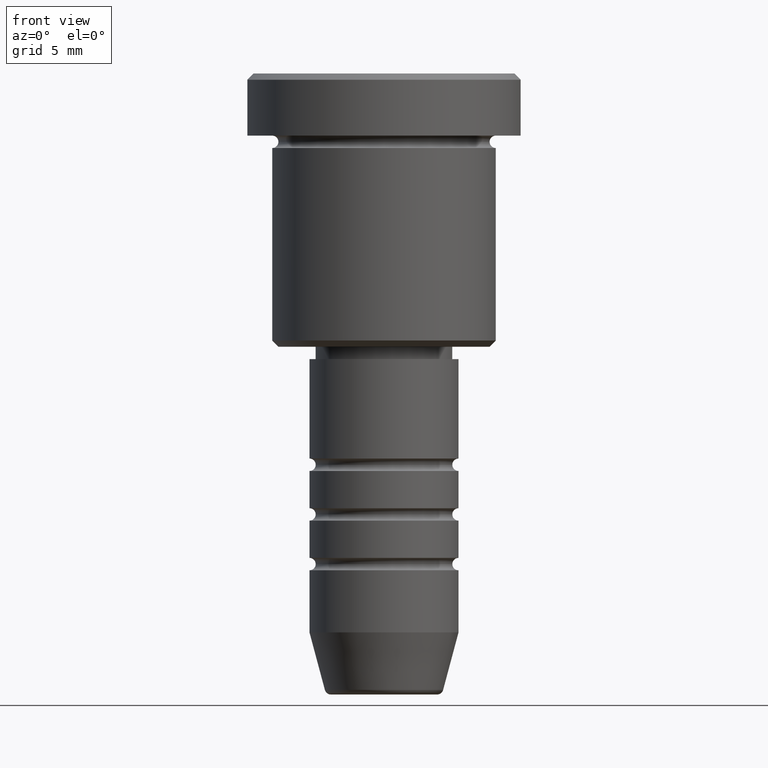
[diagram: clean part render]
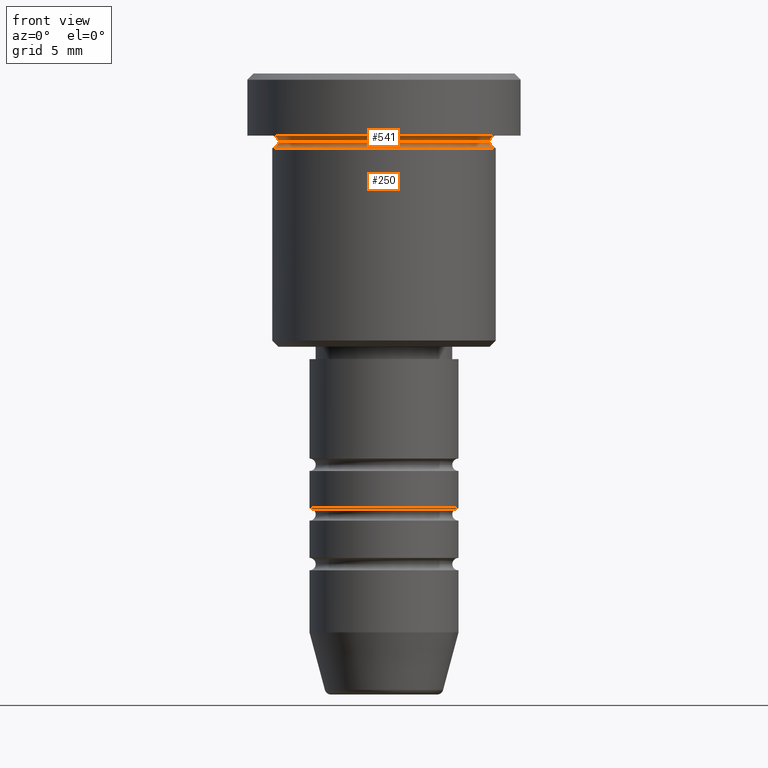
[diagram: same view with one multi-face feature highlighted, each face labeled with its STEP entity id]
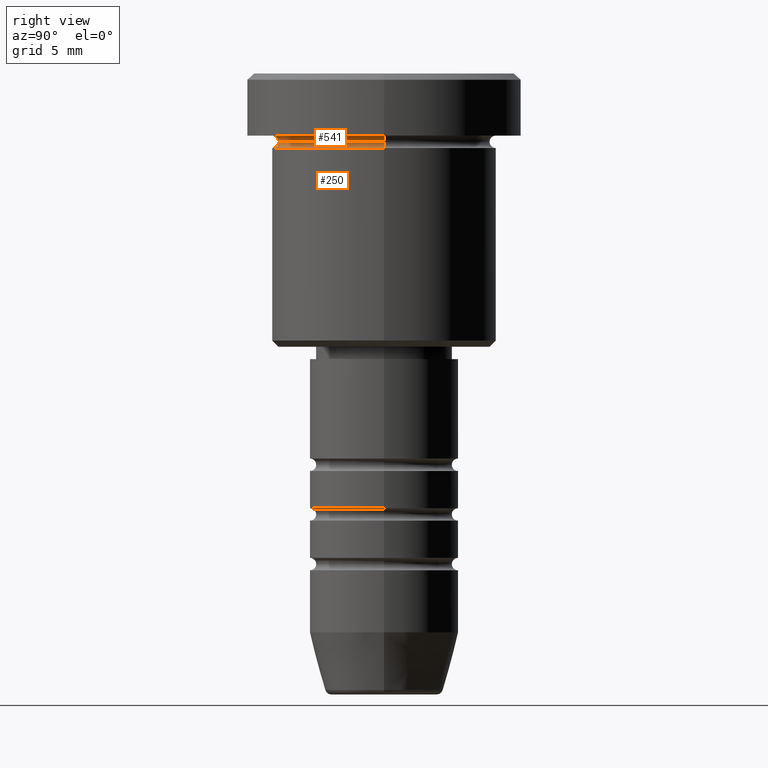
[diagram: same view with one multi-face feature highlighted, each face labeled with its STEP entity id]
A machine part, front view. The highlighted faces form ONE feature: a constant-radius fillet chain: 2 tangent blend faces with common blend radius 0.5 mm. The faces share edges in the B-rep.
A second angle (right view) of the same feature is appended — it is thin or edge-on in the first view.
Their STEP definitions:
[1] entity #250 (Torus):
#11 = VERTEX_POINT ( 'NONE', #1083 ) ;
#44 = DIRECTION ( 'NONE',  ( 1.000000000000000000, 0.000000000000000000, 0.000000000000000000 ) ) ;
#46 = CARTESIAN_POINT ( 'NONE',  ( 9.000000000000000000, 0.000000000000000000, -5.500000000000000000 ) ) ;
#170 = DIRECTION ( 'NONE',  ( -0.000000000000000000, -0.000000000000000000, 1.000000000000000000 ) ) ;
#200 = CIRCLE ( 'NONE', #281, 0.5000000000000004441 ) ;
#204 = DIRECTION ( 'NONE',  ( -0.000000000000000000, -0.000000000000000000, 1.000000000000000000 ) ) ;
#214 = AXIS2_PLACEMENT_3D ( 'NONE', #400, #1111, #44 ) ;
#250 = ADVANCED_FACE ( 'NONE', ( #767 ), #309, .F. ) ;
#281 = AXIS2_PLACEMENT_3D ( 'NONE', #567, #664, #932 ) ;
#282 = CIRCLE ( 'NONE', #1130, 0.5000000000000004441 ) ;
#290 = ORIENTED_EDGE ( 'NONE', *, *, #710, .T. ) ;
#309 = TOROIDAL_SURFACE ( 'NONE', #214, 9.000000000000000000, 0.5000000000000000000 ) ;
#343 = VERTEX_POINT ( 'NONE', #953 ) ;
#374 = AXIS2_PLACEMENT_3D ( 'NONE', #1183, #204, #477 ) ;
#400 = CARTESIAN_POINT ( 'NONE',  ( 0.000000000000000000, 0.000000000000000000, -5.500000000000000000 ) ) ;
#408 = DIRECTION ( 'NONE',  ( 0.000000000000000000, -1.000000000000000000, 0.000000000000000000 ) ) ;
#410 = ORIENTED_EDGE ( 'NONE', *, *, #1155, .T. ) ;
#426 = VERTEX_POINT ( 'NONE', #516 ) ;
#439 = ORIENTED_EDGE ( 'NONE', *, *, #1004, .F. ) ;
#452 = DIRECTION ( 'NONE',  ( 1.000000000000000000, 0.000000000000000000, 0.000000000000000000 ) ) ;
#477 = DIRECTION ( 'NONE',  ( 1.000000000000000000, 0.000000000000000000, 0.000000000000000000 ) ) ;
#516 = CARTESIAN_POINT ( 'NONE',  ( 9.000000000000000000, 0.000000000000000000, -6.000000000000000000 ) ) ;
#542 = AXIS2_PLACEMENT_3D ( 'NONE', #1175, #170, #452 ) ;
#555 = EDGE_CURVE ( 'NONE', #591, #11, #782, .T. ) ;
#567 = CARTESIAN_POINT ( 'NONE',  ( -9.000000000000000000, 1.102182119232617714E-15, -5.500000000000000000 ) ) ;
#591 = VERTEX_POINT ( 'NONE', #911 ) ;
#664 = DIRECTION ( 'NONE',  ( 1.224646799147353207E-16, 1.000000000000000000, 0.000000000000000000 ) ) ;
#665 = DIRECTION ( 'NONE',  ( 0.000000000000000000, 0.000000000000000000, -1.000000000000000000 ) ) ;
#710 = EDGE_CURVE ( 'NONE', #591, #343, #200, .T. ) ;
#767 = FACE_OUTER_BOUND ( 'NONE', #1078, .T. ) ;
#782 = CIRCLE ( 'NONE', #374, 8.499999999999998224 ) ;
#911 = CARTESIAN_POINT ( 'NONE',  ( -8.499999999999998224, 1.071565949253933927E-15, -5.500000000000000000 ) ) ;
#932 = DIRECTION ( 'NONE',  ( -1.000000000000000000, 1.224646799147353454E-16, 0.000000000000000000 ) ) ;
#953 = CARTESIAN_POINT ( 'NONE',  ( -9.000000000000000000, 1.102182119232617714E-15, -6.000000000000000000 ) ) ;
#1004 = EDGE_CURVE ( 'NONE', #11, #426, #282, .T. ) ;
#1006 = ORIENTED_EDGE ( 'NONE', *, *, #555, .F. ) ;
#1059 = CIRCLE ( 'NONE', #542, 9.000000000000000000 ) ;
#1078 = EDGE_LOOP ( 'NONE', ( #1006, #290, #410, #439 ) ) ;
#1083 = CARTESIAN_POINT ( 'NONE',  ( 8.499999999999998224, 0.000000000000000000, -5.500000000000000000 ) ) ;
#1111 = DIRECTION ( 'NONE',  ( -0.000000000000000000, -0.000000000000000000, 1.000000000000000000 ) ) ;
#1130 = AXIS2_PLACEMENT_3D ( 'NONE', #46, #408, #665 ) ;
#1155 = EDGE_CURVE ( 'NONE', #343, #426, #1059, .T. ) ;
#1175 = CARTESIAN_POINT ( 'NONE',  ( 0.000000000000000000, 0.000000000000000000, -6.000000000000000000 ) ) ;
#1183 = CARTESIAN_POINT ( 'NONE',  ( 0.000000000000000000, 0.000000000000000000, -5.500000000000000000 ) ) ;
[2] entity #541 (Torus):
#11 = VERTEX_POINT ( 'NONE', #1083 ) ;
#58 = VERTEX_POINT ( 'NONE', #273 ) ;
#82 = EDGE_CURVE ( 'NONE', #921, #58, #448, .T. ) ;
#86 = CARTESIAN_POINT ( 'NONE',  ( -9.000000000000000000, 0.000000000000000000, -5.500000000000000000 ) ) ;
#101 = DIRECTION ( 'NONE',  ( -1.000000000000000000, 0.000000000000000000, 0.000000000000000000 ) ) ;
#114 = EDGE_CURVE ( 'NONE', #11, #58, #825, .T. ) ;
#122 = AXIS2_PLACEMENT_3D ( 'NONE', #249, #974, #445 ) ;
#174 = DIRECTION ( 'NONE',  ( -0.000000000000000000, -0.000000000000000000, 1.000000000000000000 ) ) ;
#198 = CARTESIAN_POINT ( 'NONE',  ( 0.000000000000000000, 0.000000000000000000, -5.500000000000000000 ) ) ;
#204 = DIRECTION ( 'NONE',  ( -0.000000000000000000, -0.000000000000000000, 1.000000000000000000 ) ) ;
#249 = CARTESIAN_POINT ( 'NONE',  ( 9.000000000000000000, 1.102182119232617714E-15, -5.500000000000000000 ) ) ;
#273 = CARTESIAN_POINT ( 'NONE',  ( 9.000000000000000000, 1.102182119232617714E-15, -4.999999999999999112 ) ) ;
#292 = ORIENTED_EDGE ( 'NONE', *, *, #82, .F. ) ;
#350 = DIRECTION ( 'NONE',  ( 0.000000000000000000, 0.000000000000000000, -1.000000000000000000 ) ) ;
#374 = AXIS2_PLACEMENT_3D ( 'NONE', #1183, #204, #477 ) ;
#385 = DIRECTION ( 'NONE',  ( 0.000000000000000000, 0.000000000000000000, -1.000000000000000000 ) ) ;
#391 = AXIS2_PLACEMENT_3D ( 'NONE', #86, #812, #350 ) ;
#445 = DIRECTION ( 'NONE',  ( -1.000000000000000000, -1.224646799147353454E-16, 0.000000000000000000 ) ) ;
#448 = CIRCLE ( 'NONE', #599, 9.000000000000000000 ) ;
#477 = DIRECTION ( 'NONE',  ( 1.000000000000000000, 0.000000000000000000, 0.000000000000000000 ) ) ;
#484 = AXIS2_PLACEMENT_3D ( 'NONE', #198, #385, #101 ) ;
#537 = TOROIDAL_SURFACE ( 'NONE', #484, 9.000000000000000000, 0.5000000000000000000 ) ;
#541 = ADVANCED_FACE ( 'NONE', ( #720 ), #537, .F. ) ;
#555 = EDGE_CURVE ( 'NONE', #591, #11, #782, .T. ) ;
#591 = VERTEX_POINT ( 'NONE', #911 ) ;
#599 = AXIS2_PLACEMENT_3D ( 'NONE', #991, #174, #1064 ) ;
#720 = FACE_OUTER_BOUND ( 'NONE', #1098, .T. ) ;
#782 = CIRCLE ( 'NONE', #374, 8.499999999999998224 ) ;
#796 = ORIENTED_EDGE ( 'NONE', *, *, #1162, .F. ) ;
#812 = DIRECTION ( 'NONE',  ( -0.000000000000000000, -1.000000000000000000, -0.000000000000000000 ) ) ;
#825 = CIRCLE ( 'NONE', #122, 0.5000000000000004441 ) ;
#905 = CIRCLE ( 'NONE', #391, 0.5000000000000004441 ) ;
#911 = CARTESIAN_POINT ( 'NONE',  ( -8.499999999999998224, 1.071565949253933927E-15, -5.500000000000000000 ) ) ;
#921 = VERTEX_POINT ( 'NONE', #1143 ) ;
#974 = DIRECTION ( 'NONE',  ( -1.224646799147353207E-16, 1.000000000000000000, 0.000000000000000000 ) ) ;
#986 = ORIENTED_EDGE ( 'NONE', *, *, #555, .T. ) ;
#991 = CARTESIAN_POINT ( 'NONE',  ( 0.000000000000000000, 0.000000000000000000, -5.000000000000000000 ) ) ;
#1064 = DIRECTION ( 'NONE',  ( -1.000000000000000000, 0.000000000000000000, 0.000000000000000000 ) ) ;
#1083 = CARTESIAN_POINT ( 'NONE',  ( 8.499999999999998224, 0.000000000000000000, -5.500000000000000000 ) ) ;
#1098 = EDGE_LOOP ( 'NONE', ( #986, #1148, #292, #796 ) ) ;
#1143 = CARTESIAN_POINT ( 'NONE',  ( -9.000000000000000000, 0.000000000000000000, -4.999999999999999112 ) ) ;
#1148 = ORIENTED_EDGE ( 'NONE', *, *, #114, .T. ) ;
#1162 = EDGE_CURVE ( 'NONE', #591, #921, #905, .T. ) ;
#1183 = CARTESIAN_POINT ( 'NONE',  ( 0.000000000000000000, 0.000000000000000000, -5.500000000000000000 ) ) ;